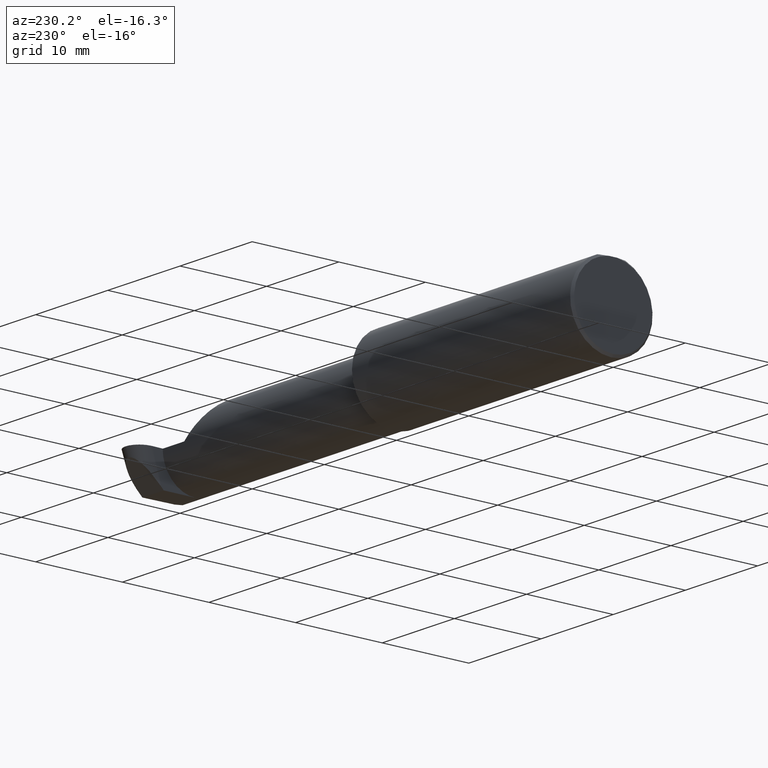
[diagram: clean part render]
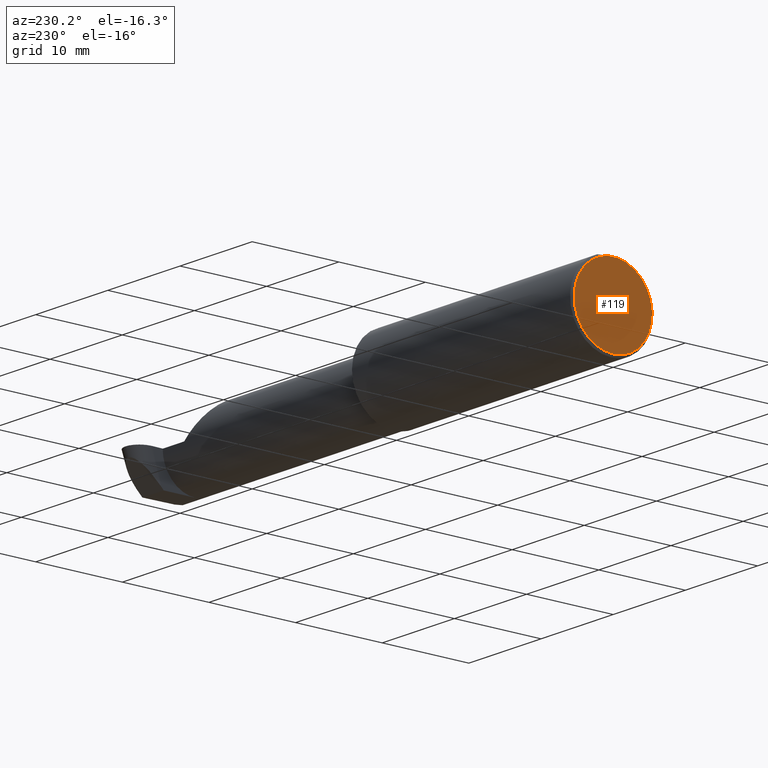
[diagram: same view with one face highlighted and labeled with its STEP entity id]
A machine part, auxiliary view. The second image highlights one B-rep face of the part: STEP entity #119.
In plain terms, the highlighted planar face has unit normal (1, 0, 0).
Its self-contained STEP definition (entity closure, byte-faithful):
#1 = CARTESIAN_POINT ( 'NONE',  ( 0.000000000000000000, 0.1873499999999998500, 0.1763499999999999235 ) ) ;
#22 = AXIS2_PLACEMENT_3D ( 'NONE', #569, #458, #296 ) ;
#31 = PLANE ( 'NONE',  #22 ) ;
#37 = AXIS2_PLACEMENT_3D ( 'NONE', #612, #128, #505 ) ;
#57 = LINE ( 'NONE', #1, #110 ) ;
#66 = DIRECTION ( 'NONE',  ( -0.000000000000000000, 1.000000000000000000, -0.000000000000000000 ) ) ;
#80 = CIRCLE ( 'NONE', #37, 0.1773499999999999521 ) ;
#110 = VECTOR ( 'NONE', #66, 39.37007874015748143 ) ;
#119 = ADVANCED_FACE ( 'NONE', ( #412 ), #31, .F. ) ;
#128 = DIRECTION ( 'NONE',  ( -1.000000000000000000, -0.000000000000000000, -0.000000000000000000 ) ) ;
#151 = VERTEX_POINT ( 'NONE', #622 ) ;
#163 = EDGE_CURVE ( 'NONE', #479, #151, #259, .T. ) ;
#205 = AXIS2_PLACEMENT_3D ( 'NONE', #572, #301, #507 ) ;
#252 = EDGE_CURVE ( 'NONE', #704, #479, #80, .T. ) ;
#259 = CIRCLE ( 'NONE', #205, 0.1773499999999999521 ) ;
#296 = DIRECTION ( 'NONE',  ( 0.000000000000000000, 0.000000000000000000, -1.000000000000000000 ) ) ;
#301 = DIRECTION ( 'NONE',  ( -1.000000000000000000, -0.000000000000000000, -0.000000000000000000 ) ) ;
#395 = ORIENTED_EDGE ( 'NONE', *, *, #163, .T. ) ;
#412 = FACE_OUTER_BOUND ( 'NONE', #576, .T. ) ;
#458 = DIRECTION ( 'NONE',  ( 1.000000000000000000, 0.000000000000000000, 0.000000000000000000 ) ) ;
#479 = VERTEX_POINT ( 'NONE', #583 ) ;
#504 = CARTESIAN_POINT ( 'NONE',  ( 0.000000000000000000, 0.01880691362238934988, 0.1763499999999999235 ) ) ;
#505 = DIRECTION ( 'NONE',  ( 0.000000000000000000, 0.000000000000000000, -1.000000000000000000 ) ) ;
#507 = DIRECTION ( 'NONE',  ( 0.000000000000000000, 0.000000000000000000, -1.000000000000000000 ) ) ;
#521 = ORIENTED_EDGE ( 'NONE', *, *, #707, .T. ) ;
#569 = CARTESIAN_POINT ( 'NONE',  ( 0.000000000000000000, 0.000000000000000000, 0.000000000000000000 ) ) ;
#572 = CARTESIAN_POINT ( 'NONE',  ( 0.000000000000000000, 0.000000000000000000, 0.000000000000000000 ) ) ;
#576 = EDGE_LOOP ( 'NONE', ( #521, #674, #395 ) ) ;
#583 = CARTESIAN_POINT ( 'NONE',  ( 0.000000000000000000, 0.000000000000000000, -0.1773499999999999521 ) ) ;
#612 = CARTESIAN_POINT ( 'NONE',  ( 0.000000000000000000, 0.000000000000000000, 0.000000000000000000 ) ) ;
#622 = CARTESIAN_POINT ( 'NONE',  ( 0.000000000000000000, -0.01880691362238934641, 0.1763499999999999235 ) ) ;
#674 = ORIENTED_EDGE ( 'NONE', *, *, #252, .T. ) ;
#704 = VERTEX_POINT ( 'NONE', #504 ) ;
#707 = EDGE_CURVE ( 'NONE', #151, #704, #57, .T. ) ;